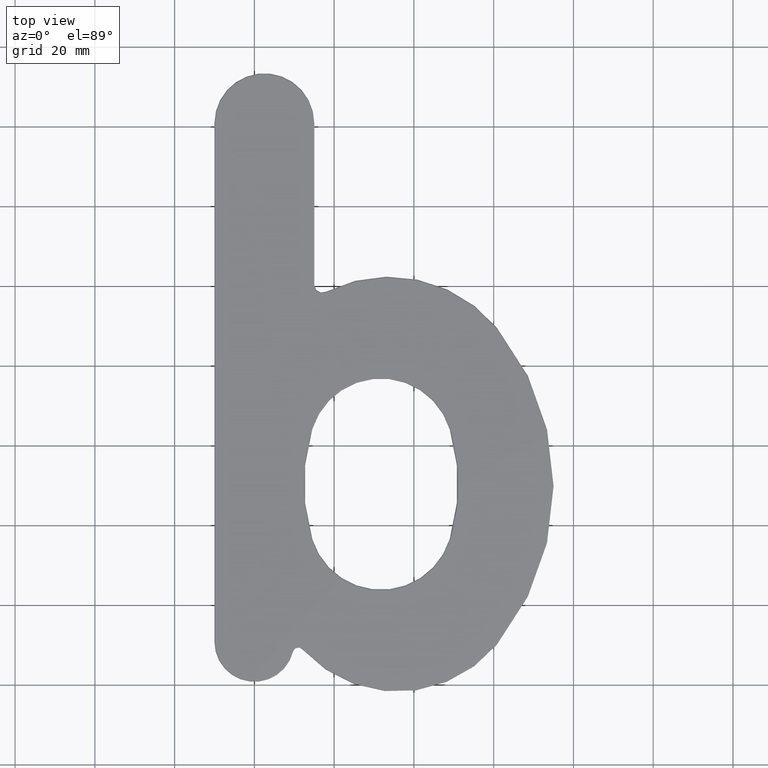
[diagram: clean part render]
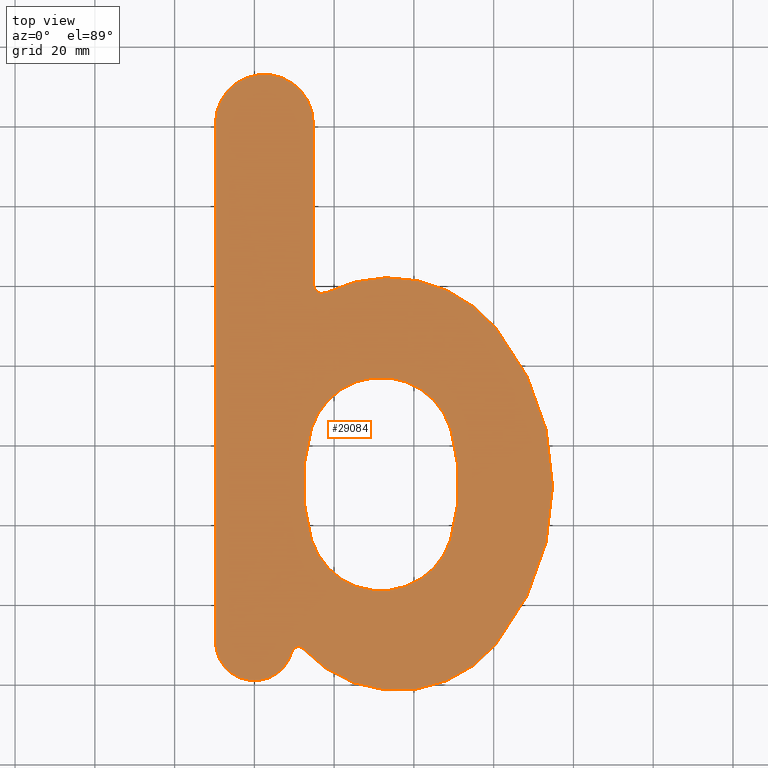
[diagram: same view with one face highlighted and labeled with its STEP entity id]
A machine part, top view. The second image highlights one B-rep face of the part: STEP entity #29084.
In plain terms, the highlighted planar face has unit normal (0, 0, 1).
Its self-contained STEP definition (entity closure, byte-faithful):
#690 = DIRECTION ( 'NONE',  ( 0.000000000000000000, -0.000000000000000000, -1.000000000000000000 ) ) ;
#707 = CARTESIAN_POINT ( 'NONE',  ( 51.24656107259242788, 47.15815935136522086, 2.000000000000000000 ) ) ;
#1009 = CIRCLE ( 'NONE', #14950, 9.750000000000000000 ) ;
#1200 = AXIS2_PLACEMENT_3D ( 'NONE', #35986, #23722, #35864 ) ;
#1224 = CARTESIAN_POINT ( 'NONE',  ( 49.23740582017435230, 35.69875041328855048, 2.000000000000000000 ) ) ;
#1504 = LINE ( 'NONE', #9016, #31648 ) ;
#1641 = VERTEX_POINT ( 'NONE', #19112 ) ;
#1704 = DIRECTION ( 'NONE',  ( 1.000000000000000000, 0.000000000000000000, 0.000000000000000000 ) ) ;
#2435 = AXIS2_PLACEMENT_3D ( 'NONE', #5632, #27047, #33173 ) ;
#2480 = CARTESIAN_POINT ( 'NONE',  ( 49.23740582017425282, 63.36124958671178575, 2.000000000000000000 ) ) ;
#2607 = EDGE_CURVE ( 'NONE', #18798, #15388, #29597, .T. ) ;
#3002 = ORIENTED_EDGE ( 'NONE', *, *, #25706, .T. ) ;
#3178 = EDGE_CURVE ( 'NONE', #15896, #7084, #36198, .T. ) ;
#3371 = ORIENTED_EDGE ( 'NONE', *, *, #30835, .T. ) ;
#3530 = FACE_OUTER_BOUND ( 'NONE', #7073, .T. ) ;
#3778 = CARTESIAN_POINT ( 'NONE',  ( 50.92108719721429821, 55.35469313313057427, 2.000000000000000444 ) ) ;
#5467 = DIRECTION ( 'NONE',  ( 1.000000000000000000, 0.000000000000000000, 0.000000000000000000 ) ) ;
#5596 = CARTESIAN_POINT ( 'NONE',  ( 12.39918423801717040, 49.01815316560664826, 2.000000000000000000 ) ) ;
#5632 = CARTESIAN_POINT ( 'NONE',  ( 2.499999999999986233, 140.0300000000000296, 2.000000000000000000 ) ) ;
#5704 = CARTESIAN_POINT ( 'NONE',  ( 13.56764594842275429, 37.95184973626471958, 2.000000000000000000 ) ) ;
#5959 = CARTESIAN_POINT ( 'NONE',  ( 12.28998899721620219, 47.20747841328137184, 2.000000000000000000 ) ) ;
#6843 = CARTESIAN_POINT ( 'NONE',  ( 49.23740582017435230, 35.69875041328855048, 2.000000000000000000 ) ) ;
#6955 = DIRECTION ( 'NONE',  ( 1.000000000000000000, 0.000000000000000000, 0.000000000000000000 ) ) ;
#7073 = EDGE_LOOP ( 'NONE', ( #14651, #27288, #25732, #39291, #14033, #21814, #23220, #35988, #3371, #31192 ) ) ;
#7084 = VERTEX_POINT ( 'NONE', #32888 ) ;
#7111 = CARTESIAN_POINT ( 'NONE',  ( 49.23740582017425282, 63.36124958671178575, 2.000000000000000000 ) ) ;
#8358 = CARTESIAN_POINT ( 'NONE',  ( 33.73320053068145086, 66.52999999999998693, 2.000000000000000000 ) ) ;
#8492 = DIRECTION ( 'NONE',  ( 1.000000000000000000, 0.000000000000000000, 0.000000000000000000 ) ) ;
#8653 = CARTESIAN_POINT ( 'NONE',  ( 12.24933908830584883, 48.38706171645911525, 2.000000000000000000 ) ) ;
#8867 = CIRCLE ( 'NONE', #37534, 18.29666391587010565 ) ;
#9016 = CARTESIAN_POINT ( 'NONE',  ( -9.750000000000000000, 9.999999999999998224, 2.000000000000000000 ) ) ;
#9059 = CARTESIAN_POINT ( 'NONE',  ( 12.41473070799595213, 54.22426807429151552, 2.000000000000000000 ) ) ;
#10668 = CIRCLE ( 'NONE', #1200, 2.249999999999998668 ) ;
#11296 = CARTESIAN_POINT ( 'NONE',  ( 31.74895372145920192, 41.07666391586990073, 2.000000000000000000 ) ) ;
#11384 = EDGE_CURVE ( 'NONE', #1641, #26202, #27488, .T. ) ;
#11567 = CARTESIAN_POINT ( 'NONE',  ( 14.26050162274398758, 35.69875041328855758, 2.000000000000000000 ) ) ;
#12544 = CARTESIAN_POINT ( 'NONE',  ( 12.39918423801717040, 49.01815316560664826, 2.000000000000000000 ) ) ;
#12696 = CARTESIAN_POINT ( 'NONE',  ( 0.000000000000000000, 10.00000000000000000, 2.000000000000000000 ) ) ;
#12747 = CARTESIAN_POINT ( 'NONE',  ( 11.00000000000000178, 7.265116279069768979, 2.000000000000000000 ) ) ;
#13135 = CARTESIAN_POINT ( 'NONE',  ( 50.42600274313713271, 58.82295459974383078, 1.999999999999999556 ) ) ;
#13341 = CARTESIAN_POINT ( 'NONE',  ( 14.74999999999998401, 99.53000000000001535, 2.000000000000000000 ) ) ;
#13403 = CARTESIAN_POINT ( 'NONE',  ( 51.08317673492250321, 44.83573192570889887, 2.000000000000000444 ) ) ;
#13822 = CARTESIAN_POINT ( 'NONE',  ( 12.17671269893599195, 8.326814745223140690, 2.000000000000000000 ) ) ;
#14033 = ORIENTED_EDGE ( 'NONE', *, *, #23928, .T. ) ;
#14180 = DIRECTION ( 'NONE',  ( 0.000000000000000000, -0.000000000000000000, -1.000000000000000000 ) ) ;
#14228 = ORIENTED_EDGE ( 'NONE', *, *, #11384, .T. ) ;
#14651 = ORIENTED_EDGE ( 'NONE', *, *, #29368, .T. ) ;
#14950 = AXIS2_PLACEMENT_3D ( 'NONE', #12696, #34048, #15754 ) ;
#15171 = CARTESIAN_POINT ( 'NONE',  ( 18.01755949173060500, 97.52324324324328586, 2.000000000000000000 ) ) ;
#15388 = VERTEX_POINT ( 'NONE', #13822 ) ;
#15600 = DIRECTION ( 'NONE',  ( 1.000000000000000000, 0.000000000000000000, 0.000000000000000000 ) ) ;
#15647 = CARTESIAN_POINT ( 'NONE',  ( 60.59316990851510809, 9.458527644419429947, 2.000000000000000000 ) ) ;
#15754 = DIRECTION ( 'NONE',  ( 1.000000000000000000, 0.000000000000000000, 0.000000000000000000 ) ) ;
#15896 = VERTEX_POINT ( 'NONE', #15647 ) ;
#16290 = EDGE_CURVE ( 'NONE', #7084, #37742, #28761, .T. ) ;
#16657 = PLANE ( 'NONE',  #34657 ) ;
#16826 = CARTESIAN_POINT ( 'NONE',  ( -9.750000000000010658, 140.0300000000000296, 2.000000000000000000 ) ) ;
#17369 = EDGE_LOOP ( 'NONE', ( #33767, #3002, #14228, #36575 ) ) ;
#17605 = AXIS2_PLACEMENT_3D ( 'NONE', #22283, #28323, #31505 ) ;
#18340 = DIRECTION ( 'NONE',  ( 1.000000000000000000, 0.000000000000000000, 0.000000000000000000 ) ) ;
#18456 = VECTOR ( 'NONE', #39167, 1000.000000000000000 ) ;
#18612 = EDGE_CURVE ( 'NONE', #31180, #37549, #1504, .T. ) ;
#18798 = VERTEX_POINT ( 'NONE', #37408 ) ;
#19112 = CARTESIAN_POINT ( 'NONE',  ( 14.26050162274418653, 63.36124958671182839, 2.000000000000000000 ) ) ;
#19318 = CARTESIAN_POINT ( 'NONE',  ( 51.04407920565478207, 54.19176118998559843, 2.000000000000000000 ) ) ;
#19448 = CIRCLE ( 'NONE', #26967, 34.75000000000002842 ) ;
#19583 = CARTESIAN_POINT ( 'NONE',  ( 49.93026149449554651, 61.10815026373562375, 2.000000000000000000 ) ) ;
#19630 = CARTESIAN_POINT ( 'NONE',  ( 0.000000000000000000, 0.000000000000000000, 2.000000000000000000 ) ) ;
#20013 = DIRECTION ( 'NONE',  ( -0.000000000000000000, 0.000000000000000000, 1.000000000000000000 ) ) ;
#20583 = EDGE_CURVE ( 'NONE', #37549, #18798, #1009, .T. ) ;
#20676 = DIRECTION ( 'NONE',  ( -0.000000000000000000, 0.000000000000000000, 1.000000000000000000 ) ) ;
#20707 = CARTESIAN_POINT ( 'NONE',  ( 13.56720172996682017, 61.10670570848463967, 2.000000000000000000 ) ) ;
#20726 = CARTESIAN_POINT ( 'NONE',  ( 60.59316990851510809, 88.57777868679387723, 2.000000000000000000 ) ) ;
#20755 = VERTEX_POINT ( 'NONE', #1224 ) ;
#20962 = CARTESIAN_POINT ( 'NONE',  ( 13.07315948006747064, 58.82663641300828772, 2.000000000000000000 ) ) ;
#21234 = CARTESIAN_POINT ( 'NONE',  ( 14.26050162274398758, 35.69875041328855758, 2.000000000000000000 ) ) ;
#21712 = CIRCLE ( 'NONE', #2435, 12.24999999999999645 ) ;
#21814 = ORIENTED_EDGE ( 'NONE', *, *, #3178, .T. ) ;
#21893 = AXIS2_PLACEMENT_3D ( 'NONE', #12544, #25075, #15600 ) ;
#22283 = CARTESIAN_POINT ( 'NONE',  ( 35.89789125035162698, 29.72943826255382405, 2.000000000000000000 ) ) ;
#22500 = CARTESIAN_POINT ( 'NONE',  ( 49.93070571295167781, 37.95329429151573919, 1.999999999999999556 ) ) ;
#22510 = VERTEX_POINT ( 'NONE', #11567 ) ;
#22628 = CARTESIAN_POINT ( 'NONE',  ( 51.20791844570216966, 51.85252158671899281, 1.999999999999999556 ) ) ;
#22715 = EDGE_CURVE ( 'NONE', #26202, #20755, #32110, .T. ) ;
#23220 = ORIENTED_EDGE ( 'NONE', *, *, #16290, .T. ) ;
#23601 = CARTESIAN_POINT ( 'NONE',  ( 14.74999999999999645, 1.895346020048733706E-15, 2.000000000000000000 ) ) ;
#23625 = FACE_BOUND ( 'NONE', #17369, .T. ) ;
#23704 = DIRECTION ( 'NONE',  ( 0.000000000000000000, -0.000000000000000000, -1.000000000000000000 ) ) ;
#23722 = DIRECTION ( 'NONE',  ( 0.000000000000000000, -0.000000000000000000, -1.000000000000000000 ) ) ;
#23928 = EDGE_CURVE ( 'NONE', #15388, #15896, #24742, .T. ) ;
#24742 = CIRCLE ( 'NONE', #17605, 31.94943826255382291 ) ;
#25075 = DIRECTION ( 'NONE',  ( -0.000000000000000000, 0.000000000000000000, 1.000000000000000000 ) ) ;
#25706 = EDGE_CURVE ( 'NONE', #22510, #1641, #31938, .T. ) ;
#25732 = ORIENTED_EDGE ( 'NONE', *, *, #20583, .T. ) ;
#26189 = EDGE_CURVE ( 'NONE', #20755, #22510, #8867, .T. ) ;
#26202 = VERTEX_POINT ( 'NONE', #2480 ) ;
#26511 = VERTEX_POINT ( 'NONE', #27603 ) ;
#26967 = AXIS2_PLACEMENT_3D ( 'NONE', #8358, #20676, #8492 ) ;
#26985 = CARTESIAN_POINT ( 'NONE',  ( 12.45382823726358268, 44.86823881001478753, 2.000000000000000000 ) ) ;
#27047 = DIRECTION ( 'NONE',  ( -0.000000000000000000, 0.000000000000000000, 1.000000000000000000 ) ) ;
#27288 = ORIENTED_EDGE ( 'NONE', *, *, #18612, .T. ) ;
#27411 = AXIS2_PLACEMENT_3D ( 'NONE', #38950, #14180, #5467 ) ;
#27487 = DIRECTION ( 'NONE',  ( 1.334094805796206308E-16, -1.000000000000000000, 0.000000000000000000 ) ) ;
#27488 = CIRCLE ( 'NONE', #27411, 18.29666391587004526 ) ;
#27603 = CARTESIAN_POINT ( 'NONE',  ( 14.74999999999997868, 140.0300000000000296, 2.000000000000000000 ) ) ;
#28323 = DIRECTION ( 'NONE',  ( -0.000000000000000000, 0.000000000000000000, 1.000000000000000000 ) ) ;
#28761 = CIRCLE ( 'NONE', #21893, 62.35081576198284381 ) ;
#29084 = ADVANCED_FACE ( 'NONE', ( #3530, #23625 ), #16657, .T. ) ;
#29368 = EDGE_CURVE ( 'NONE', #26511, #31180, #21712, .T. ) ;
#29597 = CIRCLE ( 'NONE', #37123, 1.584883720930227557 ) ;
#29843 = VERTEX_POINT ( 'NONE', #15171 ) ;
#30441 = CARTESIAN_POINT ( 'NONE',  ( 14.26050162274418653, 63.36124958671182839, 2.000000000000000000 ) ) ;
#30835 = EDGE_CURVE ( 'NONE', #29843, #33226, #10668, .T. ) ;
#31180 = VERTEX_POINT ( 'NONE', #16826 ) ;
#31192 = ORIENTED_EDGE ( 'NONE', *, *, #39485, .T. ) ;
#31505 = DIRECTION ( 'NONE',  ( 1.000000000000000000, 0.000000000000000000, 0.000000000000000000 ) ) ;
#31562 = CARTESIAN_POINT ( 'NONE',  ( -9.750000000000000000, 9.999999999999998224, 2.000000000000000000 ) ) ;
#31581 = CARTESIAN_POINT ( 'NONE',  ( 50.42474796285103622, 40.23336358699211956, 2.000000000000001332 ) ) ;
#31648 = VECTOR ( 'NONE', #27487, 1000.000000000000000 ) ;
#31938 = B_SPLINE_CURVE_WITH_KNOTS ( 'NONE', 3,
 ( #21234, #5704, #39326, #36143, #26985, #5959, #8653, #38921, #9059, #20962, #20707, #30441 ),
 .UNSPECIFIED., .F., .F.,
 ( 4, 2, 2, 2, 2, 4 ),
 ( 6.938893903907228378E-18, 0.007005489154161689651, 0.01050823373124253057, 0.01401097830832337236, 0.02101646746248507502, 0.02802195661664677595 ),
 .UNSPECIFIED. ) ;
#32110 = B_SPLINE_CURVE_WITH_KNOTS ( 'NONE', 3,
 ( #7111, #19583, #13135, #3778, #19318, #22628, #37404, #707, #13403, #31581, #22500, #6843 ),
 .UNSPECIFIED., .F., .F.,
 ( 4, 2, 2, 2, 2, 4 ),
 ( 0.000000000000000000, 0.007005489154161704396, 0.01050823373124254445, 0.01401097830832338624, 0.02101646746248506809, 0.02802195661664674819 ),
 .UNSPECIFIED. ) ;
#32888 = CARTESIAN_POINT ( 'NONE',  ( 74.75000000000001421, 49.01815316560664826, 2.000000000000000000 ) ) ;
#33173 = DIRECTION ( 'NONE',  ( 1.000000000000000000, 0.000000000000000000, 0.000000000000000000 ) ) ;
#33226 = VERTEX_POINT ( 'NONE', #13341 ) ;
#33767 = ORIENTED_EDGE ( 'NONE', *, *, #26189, .T. ) ;
#34048 = DIRECTION ( 'NONE',  ( -0.000000000000000000, 0.000000000000000000, 1.000000000000000000 ) ) ;
#34657 = AXIS2_PLACEMENT_3D ( 'NONE', #19630, #20013, #1704 ) ;
#34672 = LINE ( 'NONE', #23601, #18456 ) ;
#34862 = AXIS2_PLACEMENT_3D ( 'NONE', #5596, #36570, #18340 ) ;
#35864 = DIRECTION ( 'NONE',  ( 1.000000000000000000, 0.000000000000000000, 0.000000000000000000 ) ) ;
#35986 = CARTESIAN_POINT ( 'NONE',  ( 16.99999999999998224, 99.53000000000001535, 2.000000000000000000 ) ) ;
#35988 = ORIENTED_EDGE ( 'NONE', *, *, #38232, .T. ) ;
#36143 = CARTESIAN_POINT ( 'NONE',  ( 12.57682024570404344, 43.70530686686980459, 2.000000000000000444 ) ) ;
#36198 = CIRCLE ( 'NONE', #34862, 62.35081576198284381 ) ;
#36570 = DIRECTION ( 'NONE',  ( -0.000000000000000000, 0.000000000000000000, 1.000000000000000000 ) ) ;
#36575 = ORIENTED_EDGE ( 'NONE', *, *, #22715, .T. ) ;
#37123 = AXIS2_PLACEMENT_3D ( 'NONE', #12747, #690, #6955 ) ;
#37404 = CARTESIAN_POINT ( 'NONE',  ( 51.24856835461255145, 50.67293828354127783, 1.999999999999999556 ) ) ;
#37408 = CARTESIAN_POINT ( 'NONE',  ( 9.461940910956091244, 7.647517439474762924, 2.000000000000000000 ) ) ;
#37534 = AXIS2_PLACEMENT_3D ( 'NONE', #11296, #23704, #38872 ) ;
#37549 = VERTEX_POINT ( 'NONE', #31562 ) ;
#37742 = VERTEX_POINT ( 'NONE', #20726 ) ;
#38232 = EDGE_CURVE ( 'NONE', #37742, #29843, #19448, .T. ) ;
#38872 = DIRECTION ( 'NONE',  ( 1.000000000000000000, 0.000000000000000000, 0.000000000000000000 ) ) ;
#38921 = CARTESIAN_POINT ( 'NONE',  ( 12.25134637032599549, 51.90184064863518643, 2.000000000000000000 ) ) ;
#38950 = CARTESIAN_POINT ( 'NONE',  ( 31.74895372145921613, 57.98333608413009443, 2.000000000000000000 ) ) ;
#39167 = DIRECTION ( 'NONE',  ( -1.284980352575412946E-16, 1.000000000000000000, -0.000000000000000000 ) ) ;
#39291 = ORIENTED_EDGE ( 'NONE', *, *, #2607, .T. ) ;
#39326 = CARTESIAN_POINT ( 'NONE',  ( 13.07190469978117697, 40.23704540025652676, 1.999999999999999556 ) ) ;
#39485 = EDGE_CURVE ( 'NONE', #33226, #26511, #34672, .T. ) ;